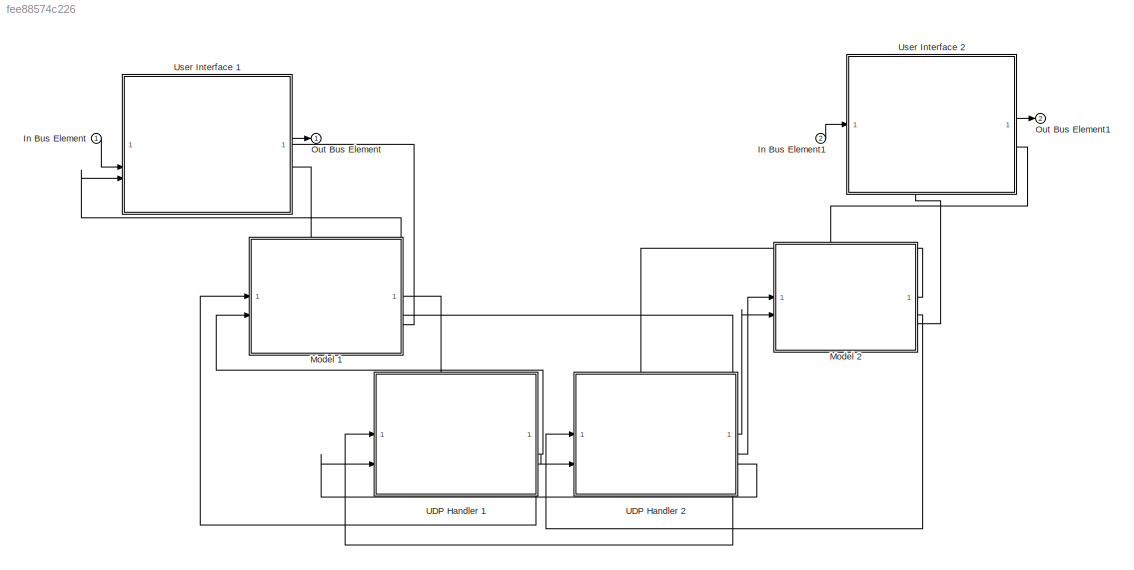
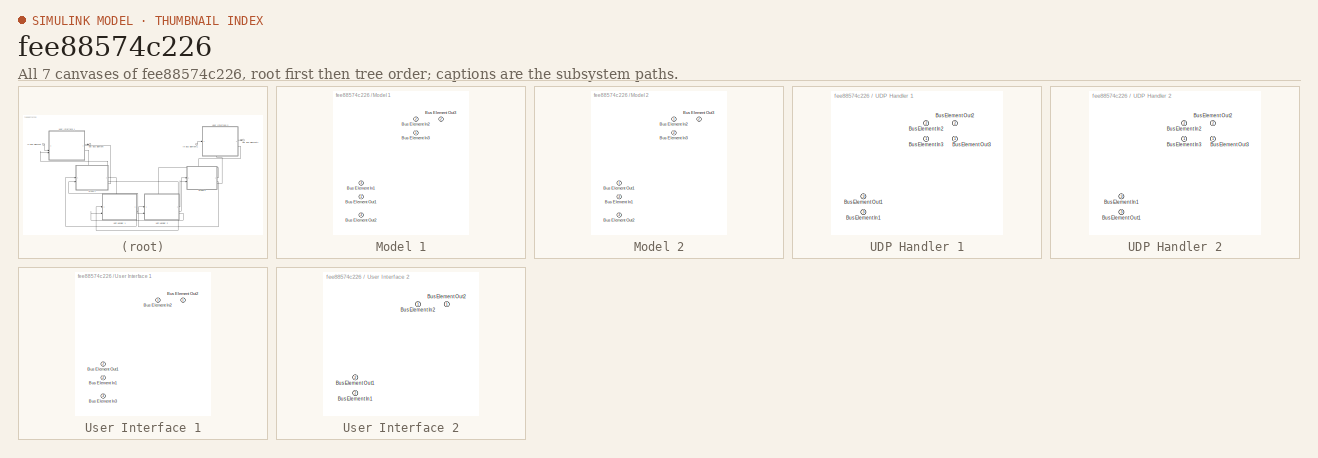
[diagram: thumbnail index - all 7 canvases of the model, root first then tree order]
MODEL slx_fee88574c226
KIND model
CONFIG AbsTol = auto
CONFIG EnableMultiTasking = off
CONFIG FixedStep = auto
CONFIG MaxStep = auto
CONFIG MinStep = auto
CONFIG RelTol = 1e-3
CONFIG SampleTimeConstraint = Unconstrained
CONFIG SolverName = FixedStepDiscrete
CONFIG StartTime = 0.0
CONFIG StopTime = 10.0
BLOCK [Inport] In Bus Element
BLOCK [Inport] In Bus Element1
  Port = 2
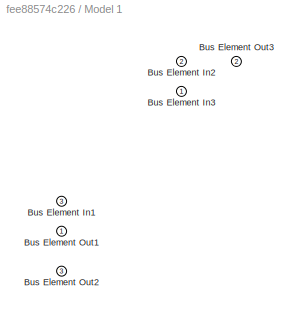
BLOCK [SubSystem] Model 1
  PortSchema = {"entries":[{"content":{"headerSize":26,"margin":15,"minimumSpacing":25,"sides":[{"content":{"connectorIds":["In1","In2"]},"type":"ConnectorPlacement.EquallySpacedRectSide","uuid":"4edb8ff1-e7e5-48ac-b271-d2d102bbe1d5"},{"content":{"connectorIds":["Out1","Out2","Out3"],"side":"RIGHT"},"type":"ConnectorPlacement.EquallySpacedRectSide","uuid":"60f8fef8-2ea4-4852-8cd6-3c57397af44a"},{"content":{"conn...<+439ch>
BLOCK [Inport] Model 1/Bus Element In1
  Port = 3
BLOCK [Inport] Model 1/Bus Element In2
  Port = 2
BLOCK [Inport] Model 1/Bus Element In3
BLOCK [Outport] Model 1/Bus Element Out1
BLOCK [Outport] Model 1/Bus Element Out2
  Port = 3
BLOCK [Outport] Model 1/Bus Element Out3
  Port = 2
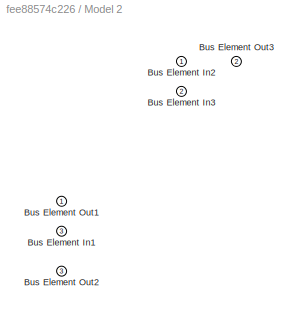
BLOCK [SubSystem] Model 2
  PortSchema = {"entries":[{"content":{"headerSize":26,"margin":15,"minimumSpacing":25,"sides":[{"content":{"connectorIds":["In2","In1"]},"type":"ConnectorPlacement.EquallySpacedRectSide","uuid":"4edb8ff1-e7e5-48ac-b271-d2d102bbe1d5"},{"content":{"connectorIds":["Out1","Out2","Out3"],"side":"RIGHT"},"type":"ConnectorPlacement.EquallySpacedRectSide","uuid":"60f8fef8-2ea4-4852-8cd6-3c57397af44a"},{"content":{"conn...<+439ch>
BLOCK [Inport] Model 2/Bus Element In1
  Port = 3
BLOCK [Inport] Model 2/Bus Element In2
BLOCK [Inport] Model 2/Bus Element In3
  Port = 2
BLOCK [Outport] Model 2/Bus Element Out1
BLOCK [Outport] Model 2/Bus Element Out2
  Port = 3
BLOCK [Outport] Model 2/Bus Element Out3
  Port = 2
BLOCK [Outport] Out Bus Element
BLOCK [Outport] Out Bus Element1
  Port = 2
BLOCK [SubSystem] UDP Handler 1
  PortSchema = {"entries":[{"content":{"headerSize":26,"margin":15,"minimumSpacing":25,"sides":[{"content":{"connectorIds":["In1","In3"]},"type":"ConnectorPlacement.EquallySpacedRectSide","uuid":"4edb8ff1-e7e5-48ac-b271-d2d102bbe1d5"},{"content":{"connectorIds":["Out1","Out2","Out3"],"side":"RIGHT"},"type":"ConnectorPlacement.EquallySpacedRectSide","uuid":"60f8fef8-2ea4-4852-8cd6-3c57397af44a"},{"content":{"conn...<+313ch>
BLOCK [Inport] UDP Handler 1/Bus Element In1
  Port = 3
BLOCK [Inport] UDP Handler 1/Bus Element In2
  Port = 2
BLOCK [Inport] UDP Handler 1/Bus Element In3
BLOCK [Outport] UDP Handler 1/Bus Element Out1
  Port = 3
BLOCK [Outport] UDP Handler 1/Bus Element Out2
  Port = 2
BLOCK [Outport] UDP Handler 1/Bus Element Out3
BLOCK [SubSystem] UDP Handler 2
  PortSchema = {"entries":[{"content":{"headerSize":26,"margin":15,"minimumSpacing":25,"sides":[{"content":{"connectorIds":["In1","In3"]},"type":"ConnectorPlacement.EquallySpacedRectSide","uuid":"4edb8ff1-e7e5-48ac-b271-d2d102bbe1d5"},{"content":{"connectorIds":["Out1","Out2","Out3"],"side":"RIGHT"},"type":"ConnectorPlacement.EquallySpacedRectSide","uuid":"60f8fef8-2ea4-4852-8cd6-3c57397af44a"},{"content":{"conn...<+313ch>
BLOCK [Inport] UDP Handler 2/Bus Element In1
  Port = 3
BLOCK [Inport] UDP Handler 2/Bus Element In2
  Port = 2
BLOCK [Inport] UDP Handler 2/Bus Element In3
BLOCK [Outport] UDP Handler 2/Bus Element Out1
  Port = 3
BLOCK [Outport] UDP Handler 2/Bus Element Out2
  Port = 2
BLOCK [Outport] UDP Handler 2/Bus Element Out3
BLOCK [SubSystem] User Interface 1
  PortSchema = {"entries":[{"content":{"headerSize":26,"margin":15,"minimumSpacing":25,"sides":[{"content":{"connectorIds":["In2","In3"]},"type":"ConnectorPlacement.EquallySpacedRectSide","uuid":"4edb8ff1-e7e5-48ac-b271-d2d102bbe1d5"},{"content":{"connectorIds":["Out1","Out2"],"side":"RIGHT"},"type":"ConnectorPlacement.EquallySpacedRectSide","uuid":"60f8fef8-2ea4-4852-8cd6-3c57397af44a"},{"content":{"side":"TOP"...<+432ch>
BLOCK [Inport] User Interface 1/Bus Element In1
  Port = 2
BLOCK [Inport] User Interface 1/Bus Element In2
BLOCK [Inport] User Interface 1/Bus Element In3
  Port = 3
BLOCK [Outport] User Interface 1/Bus Element Out1
  Port = 2
BLOCK [Outport] User Interface 1/Bus Element Out2
BLOCK [SubSystem] User Interface 2
  PortSchema = {"entries":[{"content":{"headerSize":26,"margin":15,"minimumSpacing":25,"sides":[{"content":{"connectorIds":["In1"]},"type":"ConnectorPlacement.EquallySpacedRectSide","uuid":"4edb8ff1-e7e5-48ac-b271-d2d102bbe1d5"},{"content":{"connectorIds":["Out1","Out2"],"side":"RIGHT"},"type":"ConnectorPlacement.EquallySpacedRectSide","uuid":"60f8fef8-2ea4-4852-8cd6-3c57397af44a"},{"content":{"side":"TOP"},"typ...<+426ch>
BLOCK [Inport] User Interface 2/Bus Element In1
  Port = 2
BLOCK [Inport] User Interface 2/Bus Element In2
BLOCK [Outport] User Interface 2/Bus Element Out1
  Port = 2
BLOCK [Outport] User Interface 2/Bus Element Out2
LINE In Bus Element1:1 -> User Interface 2:1
LINE In Bus Element:1 -> User Interface 1:2
LINE Model 1:1 -> UDP Handler 1:2
LINE Model 1:2 -> UDP Handler 1:1
NET Model 1:3 -> User Interface 1:1, User Interface 1:3
LINE Model 2:1 -> UDP Handler 2:2
LINE Model 2:2 -> UDP Handler 2:1
LINE Model 2:3 -> User Interface 2:2
LINE UDP Handler 1:1 -> Model 1:1
LINE UDP Handler 1:2 -> Model 1:2
LINE UDP Handler 1:3 -> UDP Handler 2:3
LINE UDP Handler 2:1 -> Model 2:2
LINE UDP Handler 2:2 -> Model 2:1
LINE UDP Handler 2:3 -> UDP Handler 1:3
LINE User Interface 1:1 -> Out Bus Element:1
LINE User Interface 1:2 -> Model 1:3
LINE User Interface 2:1 -> Out Bus Element1:1
LINE User Interface 2:2 -> Model 2:3
note: NET lines group one-source signal fan-out (src -> all destinations, sorted); 1:1 wires keep LINE
